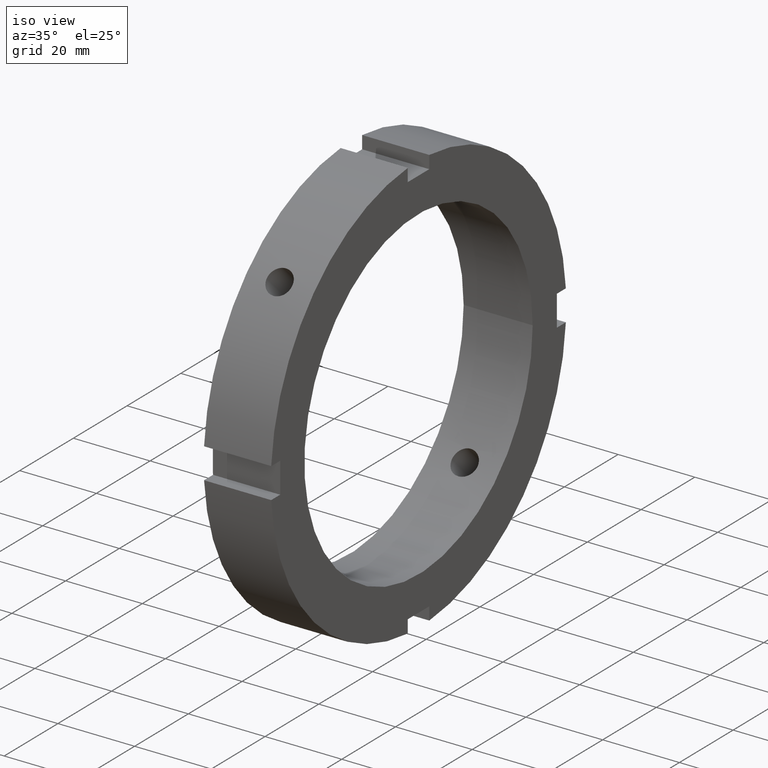
[diagram: clean part render]
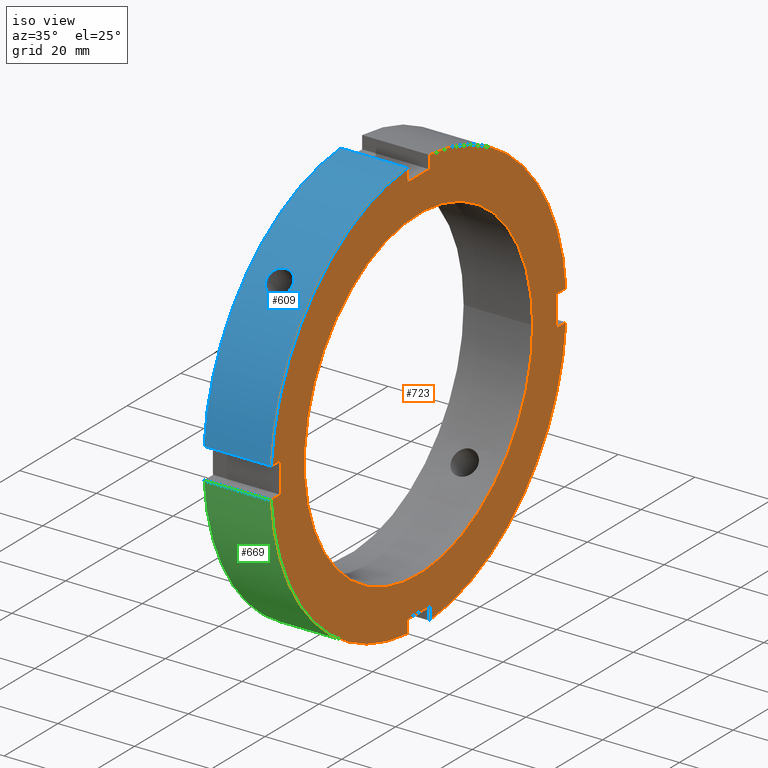
[diagram: same view with three faces highlighted in distinct colors, each labeled with its STEP entity id]
A machine part, iso view with three faces highlighted in distinct colors.
Their STEP definitions:

[orange] entity #723 — the highlighted planar face has unit normal (1, 0, 0).
#259=CARTESIAN_POINT('',(17.999999999999989,-4.000000000000007,-51.500000000000000));
#260=VERTEX_POINT('',#259);
#267=CARTESIAN_POINT('',(17.999999999999989,-4.000000000000007,-54.854352607609911));
#268=VERTEX_POINT('',#267);
#269=CARTESIAN_POINT('',(17.999999999999989,-4.000000000000004,-54.854352607609911));
#270=DIRECTION('',(0.0,0.0,1.0));
#271=VECTOR('',#270,3.354352607609911);
#272=LINE('',#269,#271);
#273=EDGE_CURVE('',#268,#260,#272,.T.);
#299=CARTESIAN_POINT('',(17.999999999999989,3.999999999999988,-54.854352607609911));
#300=VERTEX_POINT('',#299);
#307=CARTESIAN_POINT('',(17.999999999999989,3.999999999999988,-51.500000000000000));
#308=VERTEX_POINT('',#307);
#309=CARTESIAN_POINT('',(17.999999999999989,3.999999999999986,-51.500000000000000));
#310=DIRECTION('',(0.0,0.0,-1.0));
#311=VECTOR('',#310,3.354352607609911);
#312=LINE('',#309,#311);
#313=EDGE_CURVE('',#308,#300,#312,.T.);
#336=CARTESIAN_POINT('',(17.999999999999989,-4.000000000000007,-51.499999999999993));
#337=DIRECTION('',(0.0,1.0,0.0));
#338=VECTOR('',#337,7.999999999999996);
#339=LINE('',#336,#338);
#340=EDGE_CURVE('',#260,#308,#339,.T.);
#361=CARTESIAN_POINT('',(17.999999999999989,-51.500000000000000,4.000000000000004));
#362=VERTEX_POINT('',#361);
#369=CARTESIAN_POINT('',(17.999999999999989,-54.854352607609911,4.000000000000004));
#370=VERTEX_POINT('',#369);
#371=CARTESIAN_POINT('',(17.999999999999989,-54.854352607609911,4.000000000000004));
#372=DIRECTION('',(0.0,1.0,0.0));
#373=VECTOR('',#372,3.354352607609911);
#374=LINE('',#371,#373);
#375=EDGE_CURVE('',#370,#362,#374,.T.);
#401=CARTESIAN_POINT('',(17.999999999999989,-54.854352607609911,-3.999999999999991));
#402=VERTEX_POINT('',#401);
#409=CARTESIAN_POINT('',(17.999999999999989,-51.500000000000000,-3.999999999999991));
#410=VERTEX_POINT('',#409);
#411=CARTESIAN_POINT('',(17.999999999999989,-51.500000000000000,-3.999999999999991));
#412=DIRECTION('',(0.0,-1.0,0.0));
#413=VECTOR('',#412,3.354352607609911);
#414=LINE('',#411,#413);
#415=EDGE_CURVE('',#410,#402,#414,.T.);
#438=CARTESIAN_POINT('',(17.999999999999989,-51.500000000000000,4.000000000000004));
#439=DIRECTION('',(0.0,0.0,-1.0));
#440=VECTOR('',#439,7.999999999999995);
#441=LINE('',#438,#440);
#442=EDGE_CURVE('',#362,#410,#441,.T.);
#463=CARTESIAN_POINT('',(17.999999999999989,4.000000000000001,51.500000000000000));
#464=VERTEX_POINT('',#463);
#471=CARTESIAN_POINT('',(17.999999999999989,4.000000000000001,54.854352607609911));
#472=VERTEX_POINT('',#471);
#473=CARTESIAN_POINT('',(17.999999999999989,4.000000000000005,54.854352607609911));
#474=DIRECTION('',(0.0,0.0,-1.0));
#475=VECTOR('',#474,3.354352607609911);
#476=LINE('',#473,#475);
#477=EDGE_CURVE('',#472,#464,#476,.T.);
#503=CARTESIAN_POINT('',(17.999999999999989,-3.999999999999994,54.854352607609911));
#504=VERTEX_POINT('',#503);
#511=CARTESIAN_POINT('',(17.999999999999989,-3.999999999999994,51.500000000000000));
#512=VERTEX_POINT('',#511);
#513=CARTESIAN_POINT('',(17.999999999999989,-3.999999999999993,51.500000000000000));
#514=DIRECTION('',(0.0,0.0,1.0));
#515=VECTOR('',#514,3.354352607609911);
#516=LINE('',#513,#515);
#517=EDGE_CURVE('',#512,#504,#516,.T.);
#540=CARTESIAN_POINT('',(17.999999999999989,4.000000000000004,51.500000000000000));
#541=DIRECTION('',(0.0,-1.0,0.0));
#542=VECTOR('',#541,7.999999999999996);
#543=LINE('',#540,#542);
#544=EDGE_CURVE('',#464,#512,#543,.T.);
#556=CARTESIAN_POINT('',(17.999999999999989,54.854352607609911,3.999999999999997));
#557=VERTEX_POINT('',#556);
#558=CARTESIAN_POINT('',(17.999999999999989,0.0,0.0));
#559=DIRECTION('',(1.0,0.0,0.0));
#560=DIRECTION('',(0.0,1.0,0.0));
#561=AXIS2_PLACEMENT_3D('',#558,#559,#560);
#562=CIRCLE('',#561,55.0);
#563=EDGE_CURVE('',#557,#472,#562,.T.);
#589=CARTESIAN_POINT('',(17.999999999999989,0.0,0.0));
#590=DIRECTION('',(1.0,0.0,0.0));
#591=DIRECTION('',(0.0,1.0,0.0));
#592=AXIS2_PLACEMENT_3D('',#589,#590,#591);
#593=CIRCLE('',#592,55.0);
#594=EDGE_CURVE('',#504,#370,#593,.T.);
#625=CARTESIAN_POINT('',(17.999999999999989,54.854352607609911,-3.999999999999997));
#626=VERTEX_POINT('',#625);
#633=CARTESIAN_POINT('',(17.999999999999989,0.0,0.0));
#634=DIRECTION('',(1.0,0.0,0.0));
#635=DIRECTION('',(0.0,1.0,0.0));
#636=AXIS2_PLACEMENT_3D('',#633,#634,#635);
#637=CIRCLE('',#636,55.0);
#638=EDGE_CURVE('',#300,#626,#637,.T.);
#652=CARTESIAN_POINT('',(17.999999999999989,0.0,0.0));
#653=DIRECTION('',(1.0,0.0,0.0));
#654=DIRECTION('',(0.0,1.0,0.0));
#655=AXIS2_PLACEMENT_3D('',#652,#653,#654);
#656=CIRCLE('',#655,55.0);
#657=EDGE_CURVE('',#402,#268,#656,.T.);
#670=CARTESIAN_POINT('',(17.999999999999989,48.750000000000000,0.0));
#671=DIRECTION('',(1.0,0.0,0.0));
#672=DIRECTION('',(0.0,0.0,-1.0));
#673=AXIS2_PLACEMENT_3D('',#670,#671,#672);
#674=PLANE('',#673);
#675=ORIENTED_EDGE('',*,*,#273,.T.);
#676=ORIENTED_EDGE('',*,*,#340,.T.);
#677=ORIENTED_EDGE('',*,*,#313,.T.);
#678=ORIENTED_EDGE('',*,*,#638,.T.);
#679=CARTESIAN_POINT('',(17.999999999999989,51.500000000000000,-3.999999999999997));
#680=VERTEX_POINT('',#679);
#681=CARTESIAN_POINT('',(17.999999999999989,54.854352607609911,-3.999999999999997));
#682=DIRECTION('',(0.0,-1.0,0.0));
#683=VECTOR('',#682,3.354352607609911);
#684=LINE('',#681,#683);
#685=EDGE_CURVE('',#626,#680,#684,.T.);
#686=ORIENTED_EDGE('',*,*,#685,.T.);
#687=CARTESIAN_POINT('',(17.999999999999989,51.500000000000000,3.999999999999997));
#688=VERTEX_POINT('',#687);
#689=CARTESIAN_POINT('',(17.999999999999989,51.500000000000000,-3.999999999999998));
#690=DIRECTION('',(0.0,0.0,1.0));
#691=VECTOR('',#690,7.999999999999995);
#692=LINE('',#689,#691);
#693=EDGE_CURVE('',#680,#688,#692,.T.);
#694=ORIENTED_EDGE('',*,*,#693,.T.);
#695=CARTESIAN_POINT('',(17.999999999999989,51.500000000000000,3.999999999999997));
#696=DIRECTION('',(0.0,1.0,0.0));
#697=VECTOR('',#696,3.354352607609911);
#698=LINE('',#695,#697);
#699=EDGE_CURVE('',#688,#557,#698,.T.);
#700=ORIENTED_EDGE('',*,*,#699,.T.);
#701=ORIENTED_EDGE('',*,*,#563,.T.);
#702=ORIENTED_EDGE('',*,*,#477,.T.);
#703=ORIENTED_EDGE('',*,*,#544,.T.);
#704=ORIENTED_EDGE('',*,*,#517,.T.);
#705=ORIENTED_EDGE('',*,*,#594,.T.);
#706=ORIENTED_EDGE('',*,*,#375,.T.);
#707=ORIENTED_EDGE('',*,*,#442,.T.);
#708=ORIENTED_EDGE('',*,*,#415,.T.);
#709=ORIENTED_EDGE('',*,*,#657,.T.);
#710=EDGE_LOOP('',(#675,#676,#677,#678,#686,#694,#700,#701,#702,#703,#704,#705,#706,#707,#708,#709));
#711=FACE_OUTER_BOUND('',#710,.T.);
#712=CARTESIAN_POINT('',(17.999999999999993,42.500000000000000,0.0));
#713=VERTEX_POINT('',#712);
#714=CARTESIAN_POINT('',(17.999999999999993,0.0,0.0));
#715=DIRECTION('',(1.0,0.0,0.0));
#716=DIRECTION('',(0.0,1.0,0.0));
#717=AXIS2_PLACEMENT_3D('',#714,#715,#716);
#718=CIRCLE('',#717,42.500000000000000);
#719=EDGE_CURVE('',#713,#713,#718,.T.);
#720=ORIENTED_EDGE('',*,*,#719,.F.);
#721=EDGE_LOOP('',(#720));
#722=FACE_BOUND('',#721,.T.);
#723=ADVANCED_FACE('',(#711,#722),#674,.T.);

[blue] entity #609 — the highlighted cylindrical surface (partial cylindrical patch) has radius 55 mm, axis along (1, 0, 0).
#73=CARTESIAN_POINT('',(8.999999999999993,-41.169873274915680,36.469734500368702));
#74=VERTEX_POINT('',#73);
#75=CARTESIAN_POINT('',(8.999999999999993,-41.169873274915680,36.469734500368709));
#76=CARTESIAN_POINT('',(8.582584745131015,-41.169873274915680,36.469734500368709));
#77=CARTESIAN_POINT('',(8.137416279483068,-41.114583991320202,36.532449117381589));
#78=CARTESIAN_POINT('',(7.318604670885519,-40.888139649283289,36.785715859128914));
#79=CARTESIAN_POINT('',(6.944952896961728,-40.716795088843909,36.976070573276154));
#80=CARTESIAN_POINT('',(6.354908461585894,-40.317414351692513,37.411138679036029));
#81=CARTESIAN_POINT('',(6.099148350470624,-40.062700106208844,37.684847924466773));
#82=CARTESIAN_POINT('',(5.759941307206777,-39.497106599537815,38.277229172886408));
#83=CARTESIAN_POINT('',(5.676499999999994,-39.186029989393212,38.595715941127018));
#84=CARTESIAN_POINT('',(5.676499999999994,-38.595715941127011,39.186029989393212));
#85=CARTESIAN_POINT('',(5.759941307206780,-38.277229172886408,39.497106599537815));
#86=CARTESIAN_POINT('',(6.099148350470624,-37.684847924466773,40.062700106208837));
#87=CARTESIAN_POINT('',(6.354908461585898,-37.411138679036036,40.317414351692506));
#88=CARTESIAN_POINT('',(6.944952896961725,-36.976070573276161,40.716795088843902));
#89=CARTESIAN_POINT('',(7.318604670885507,-36.785715859128906,40.888139649283289));
#90=CARTESIAN_POINT('',(8.137416279483057,-36.532449117381574,41.114583991320202));
#91=CARTESIAN_POINT('',(8.582584745131015,-36.469734500368702,41.169873274915680));
#92=CARTESIAN_POINT('',(9.417415254868974,-36.469734500368702,41.169873274915680));
#93=CARTESIAN_POINT('',(9.862583720516927,-36.532449117381574,41.114583991320202));
#94=CARTESIAN_POINT('',(10.681395329114478,-36.785715859128906,40.888139649283289));
#95=CARTESIAN_POINT('',(11.055047103038262,-36.976070573276161,40.716795088843902));
#96=CARTESIAN_POINT('',(11.645091538414089,-37.411138679036036,40.317414351692506));
#97=CARTESIAN_POINT('',(11.900851649529365,-37.684847924466773,40.062700106208837));
#98=CARTESIAN_POINT('',(12.240058692793207,-38.277229172886408,39.497106599537815));
#99=CARTESIAN_POINT('',(12.323499999999994,-38.595715941127011,39.186029989393212));
#100=CARTESIAN_POINT('',(12.323499999999994,-39.186029989393205,38.595715941127018));
#101=CARTESIAN_POINT('',(12.240058692793207,-39.497106599537815,38.277229172886408));
#102=CARTESIAN_POINT('',(11.900851649529367,-40.062700106208837,37.684847924466780));
#103=CARTESIAN_POINT('',(11.645091538414093,-40.317414351692506,37.411138679036043));
#104=CARTESIAN_POINT('',(11.055047103038262,-40.716795088843902,36.976070573276168));
#105=CARTESIAN_POINT('',(10.681395329114485,-40.888139649283282,36.785715859128906));
#106=CARTESIAN_POINT('',(9.862583720516934,-41.114583991320195,36.532449117381582));
#107=CARTESIAN_POINT('',(9.417415254868974,-41.169873274915680,36.469734500368709));
#108=CARTESIAN_POINT('',(8.999999999999993,-41.169873274915680,36.469734500368709));
#109=B_SPLINE_CURVE_WITH_KNOTS('',3,(#75,#76,#77,#78,#79,#80,#81,#82,#83,#84,#85,#86,#87,#88,#89,#90,#91,#92,#93,#94,#95,#96,#97,#98,#99,#100,#101,#102,#103,#104,#105,#106,#107,#108),.UNSPECIFIED.,.T.,.U.,(4,2,2,2,2,2,2,2,2,2,2,2,2,2,2,2,4),(0.0,0.125224576460693,0.250449152921387,0.375673672889002,0.500898192856617,0.626122712824230,0.751347232791843,0.876571809252537,1.001796385713232,1.127020962173926,1.252245538634620,1.377470058602233,1.502694578569846,1.627919098537460,1.753143618505074,1.878368194965768,2.003592771426462),.UNSPECIFIED.);
#110=EDGE_CURVE('',#74,#74,#109,.T.);
#353=CARTESIAN_POINT('',(0.499999999999985,-54.854352607609911,4.000000000000004));
#354=VERTEX_POINT('',#353);
#369=CARTESIAN_POINT('',(17.999999999999989,-54.854352607609911,4.000000000000004));
#370=VERTEX_POINT('',#369);
#377=CARTESIAN_POINT('',(0.499999999999984,-54.854352607609911,4.000000000000004));
#378=DIRECTION('',(1.0,0.0,0.0));
#379=VECTOR('',#378,17.500000000000007);
#380=LINE('',#377,#379);
#381=EDGE_CURVE('',#354,#370,#380,.T.);
#493=CARTESIAN_POINT('',(0.499999999999985,-3.999999999999994,54.854352607609911));
#494=VERTEX_POINT('',#493);
#503=CARTESIAN_POINT('',(17.999999999999989,-3.999999999999994,54.854352607609911));
#504=VERTEX_POINT('',#503);
#505=CARTESIAN_POINT('',(17.999999999999989,-3.999999999999994,54.854352607609911));
#506=DIRECTION('',(-1.0,0.0,0.0));
#507=VECTOR('',#506,17.500000000000007);
#508=LINE('',#505,#507);
#509=EDGE_CURVE('',#504,#494,#508,.T.);
#583=CARTESIAN_POINT('',(9.249999999999988,0.0,0.0));
#584=DIRECTION('',(1.0,0.0,0.0));
#585=DIRECTION('',(0.0,1.0,0.0));
#586=AXIS2_PLACEMENT_3D('',#583,#584,#585);
#587=CYLINDRICAL_SURFACE('',#586,55.0);
#588=ORIENTED_EDGE('',*,*,#381,.T.);
#589=CARTESIAN_POINT('',(17.999999999999989,0.0,0.0));
#590=DIRECTION('',(1.0,0.0,0.0));
#591=DIRECTION('',(0.0,1.0,0.0));
#592=AXIS2_PLACEMENT_3D('',#589,#590,#591);
#593=CIRCLE('',#592,55.0);
#594=EDGE_CURVE('',#504,#370,#593,.T.);
#595=ORIENTED_EDGE('',*,*,#594,.F.);
#596=ORIENTED_EDGE('',*,*,#509,.T.);
#597=CARTESIAN_POINT('',(0.499999999999985,0.0,0.0));
#598=DIRECTION('',(1.0,0.0,0.0));
#599=DIRECTION('',(0.0,1.0,0.0));
#600=AXIS2_PLACEMENT_3D('',#597,#598,#599);
#601=CIRCLE('',#600,55.0);
#602=EDGE_CURVE('',#494,#354,#601,.T.);
#603=ORIENTED_EDGE('',*,*,#602,.T.);
#604=EDGE_LOOP('',(#588,#595,#596,#603));
#605=FACE_OUTER_BOUND('',#604,.T.);
#606=ORIENTED_EDGE('',*,*,#110,.T.);
#607=EDGE_LOOP('',(#606));
#608=FACE_BOUND('',#607,.T.);
#609=ADVANCED_FACE('',(#605,#608),#587,.T.);

[green] entity #669 — the highlighted cylindrical surface (partial cylindrical patch) has radius 55 mm, axis along (1, 0, 0).
#251=CARTESIAN_POINT('',(0.499999999999985,-4.000000000000007,-54.854352607609911));
#252=VERTEX_POINT('',#251);
#267=CARTESIAN_POINT('',(17.999999999999989,-4.000000000000007,-54.854352607609911));
#268=VERTEX_POINT('',#267);
#275=CARTESIAN_POINT('',(0.499999999999984,-4.000000000000007,-54.854352607609911));
#276=DIRECTION('',(1.0,0.0,0.0));
#277=VECTOR('',#276,17.500000000000007);
#278=LINE('',#275,#277);
#279=EDGE_CURVE('',#252,#268,#278,.T.);
#391=CARTESIAN_POINT('',(0.499999999999985,-54.854352607609911,-3.999999999999991));
#392=VERTEX_POINT('',#391);
#401=CARTESIAN_POINT('',(17.999999999999989,-54.854352607609911,-3.999999999999991));
#402=VERTEX_POINT('',#401);
#403=CARTESIAN_POINT('',(17.999999999999989,-54.854352607609911,-3.999999999999991));
#404=DIRECTION('',(-1.0,0.0,0.0));
#405=VECTOR('',#404,17.500000000000007);
#406=LINE('',#403,#405);
#407=EDGE_CURVE('',#402,#392,#406,.T.);
#646=CARTESIAN_POINT('',(9.249999999999988,0.0,0.0));
#647=DIRECTION('',(1.0,0.0,0.0));
#648=DIRECTION('',(0.0,1.0,0.0));
#649=AXIS2_PLACEMENT_3D('',#646,#647,#648);
#650=CYLINDRICAL_SURFACE('',#649,55.0);
#651=ORIENTED_EDGE('',*,*,#279,.T.);
#652=CARTESIAN_POINT('',(17.999999999999989,0.0,0.0));
#653=DIRECTION('',(1.0,0.0,0.0));
#654=DIRECTION('',(0.0,1.0,0.0));
#655=AXIS2_PLACEMENT_3D('',#652,#653,#654);
#656=CIRCLE('',#655,55.0);
#657=EDGE_CURVE('',#402,#268,#656,.T.);
#658=ORIENTED_EDGE('',*,*,#657,.F.);
#659=ORIENTED_EDGE('',*,*,#407,.T.);
#660=CARTESIAN_POINT('',(0.499999999999985,0.0,0.0));
#661=DIRECTION('',(1.0,0.0,0.0));
#662=DIRECTION('',(0.0,1.0,0.0));
#663=AXIS2_PLACEMENT_3D('',#660,#661,#662);
#664=CIRCLE('',#663,55.0);
#665=EDGE_CURVE('',#392,#252,#664,.T.);
#666=ORIENTED_EDGE('',*,*,#665,.T.);
#667=EDGE_LOOP('',(#651,#658,#659,#666));
#668=FACE_OUTER_BOUND('',#667,.T.);
#669=ADVANCED_FACE('',(#668),#650,.T.);